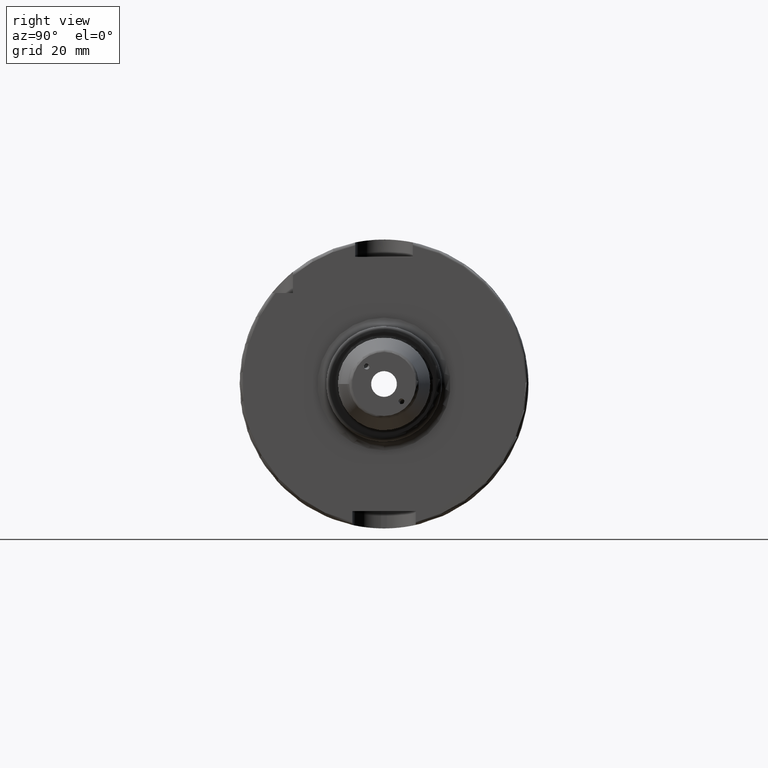
[diagram: clean part render]
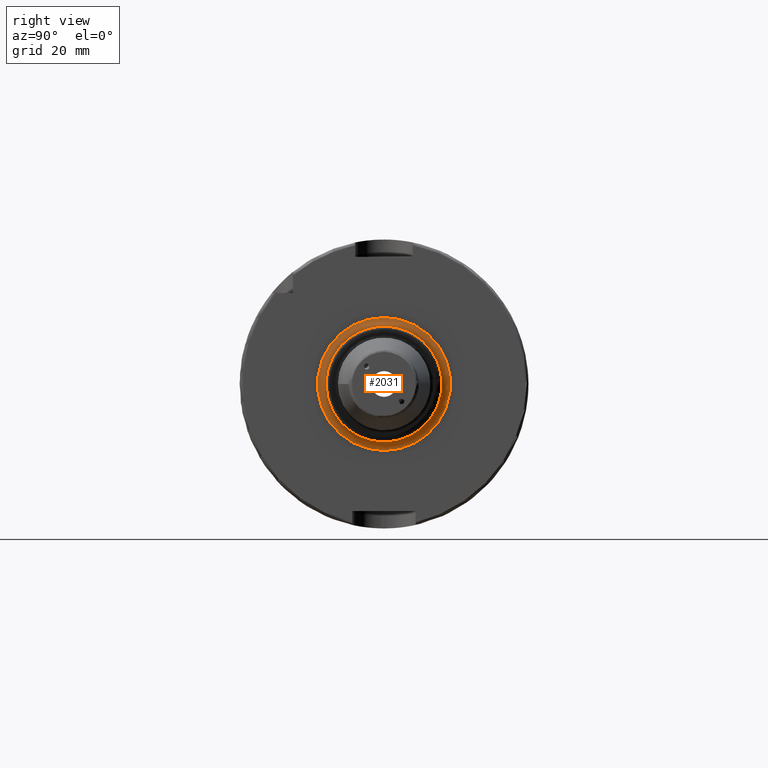
[diagram: same view with one face highlighted and labeled with its STEP entity id]
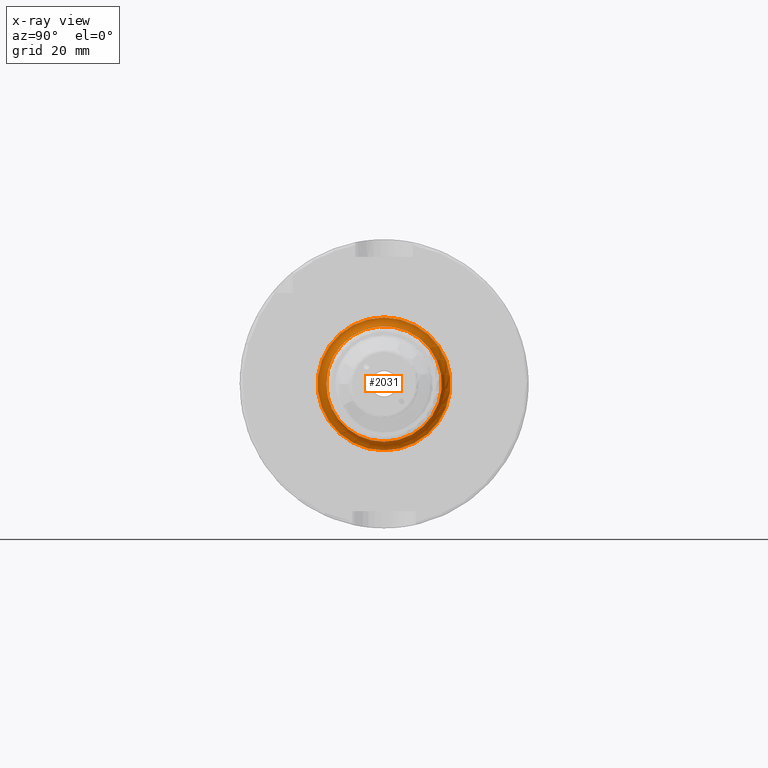
[diagram: x-ray of the same camera — body ghosted, the highlighted face saturated]
A machine part, right view. The second image highlights one B-rep face of the part: STEP entity #2031.
The next image is the same camera in x-ray: the body ghosted, the highlighted face saturated — about 0% of this face is hidden behind the body in this view.
In plain terms, the highlighted toroidal blend (fillet) surface has major radius 23 mm and minor (blend) radius 3 mm.
Its self-contained STEP definition (entity closure, byte-faithful):
#138=TOROIDAL_SURFACE('',#2181,23.,3.);
#217=FACE_OUTER_BOUND('',#340,.T.);
#340=EDGE_LOOP('',(#1376,#1377,#1378,#1379,#1380));
#691=CIRCLE('',#2182,20.);
#692=CIRCLE('',#2183,3.);
#693=CIRCLE('',#2184,23.);
#694=CIRCLE('',#2185,20.);
#833=VERTEX_POINT('',#3110);
#834=VERTEX_POINT('',#3111);
#835=VERTEX_POINT('',#3113);
#1046=EDGE_CURVE('',#833,#834,#691,.T.);
#1047=EDGE_CURVE('',#834,#835,#692,.T.);
#1048=EDGE_CURVE('',#835,#835,#693,.T.);
#1049=EDGE_CURVE('',#834,#833,#694,.T.);
#1376=ORIENTED_EDGE('',*,*,#1046,.T.);
#1377=ORIENTED_EDGE('',*,*,#1047,.T.);
#1378=ORIENTED_EDGE('',*,*,#1048,.T.);
#1379=ORIENTED_EDGE('',*,*,#1047,.F.);
#1380=ORIENTED_EDGE('',*,*,#1049,.T.);
#2031=ADVANCED_FACE('',(#217),#138,.F.);
#2181=AXIS2_PLACEMENT_3D('',#3109,#2464,#2465);
#2182=AXIS2_PLACEMENT_3D('',#3112,#2466,#2467);
#2183=AXIS2_PLACEMENT_3D('',#3114,#2468,#2469);
#2184=AXIS2_PLACEMENT_3D('',#3115,#2470,#2471);
#2185=AXIS2_PLACEMENT_3D('',#3116,#2472,#2473);
#2464=DIRECTION('center_axis',(-1.,0.,0.));
#2465=DIRECTION('ref_axis',(0.,0.,1.));
#2466=DIRECTION('center_axis',(-1.,0.,0.));
#2467=DIRECTION('ref_axis',(0.,-1.,-1.22464679914735E-16));
#2468=DIRECTION('center_axis',(0.,-1.,1.22464679914735E-16));
#2469=DIRECTION('ref_axis',(0.,-1.22464679914735E-16,-1.));
#2470=DIRECTION('center_axis',(1.,0.,0.));
#2471=DIRECTION('ref_axis',(0.,-1.,-1.22464679914735E-16));
#2472=DIRECTION('center_axis',(-1.,0.,0.));
#2473=DIRECTION('ref_axis',(0.,-1.,-1.22464679914735E-16));
#3109=CARTESIAN_POINT('Origin',(32.,0.,0.));
#3110=CARTESIAN_POINT('',(32.,-20.,-2.44929359829471E-15));
#3111=CARTESIAN_POINT('',(32.,-2.44929359829471E-15,-20.));
#3112=CARTESIAN_POINT('Origin',(32.,0.,0.));
#3113=CARTESIAN_POINT('',(29.,-2.81668763803891E-15,-23.));
#3114=CARTESIAN_POINT('Origin',(32.,-2.81668763803891E-15,-23.));
#3115=CARTESIAN_POINT('Origin',(29.,0.,0.));
#3116=CARTESIAN_POINT('Origin',(32.,0.,0.));